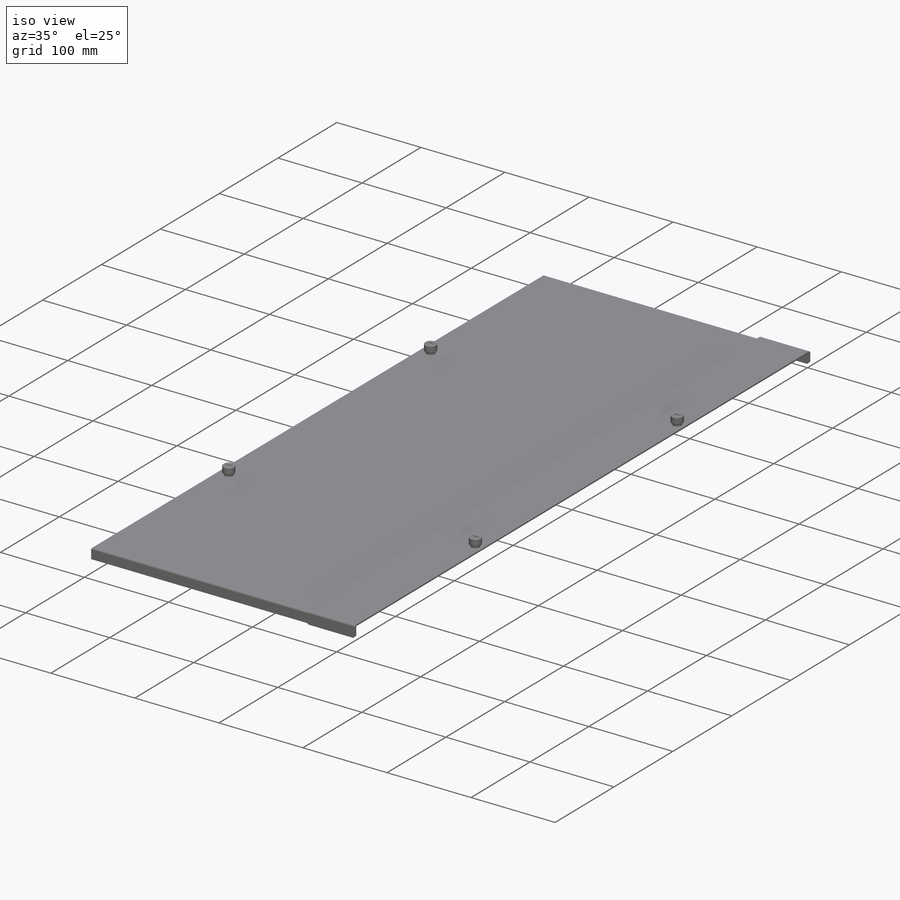
[diagram: iso view]
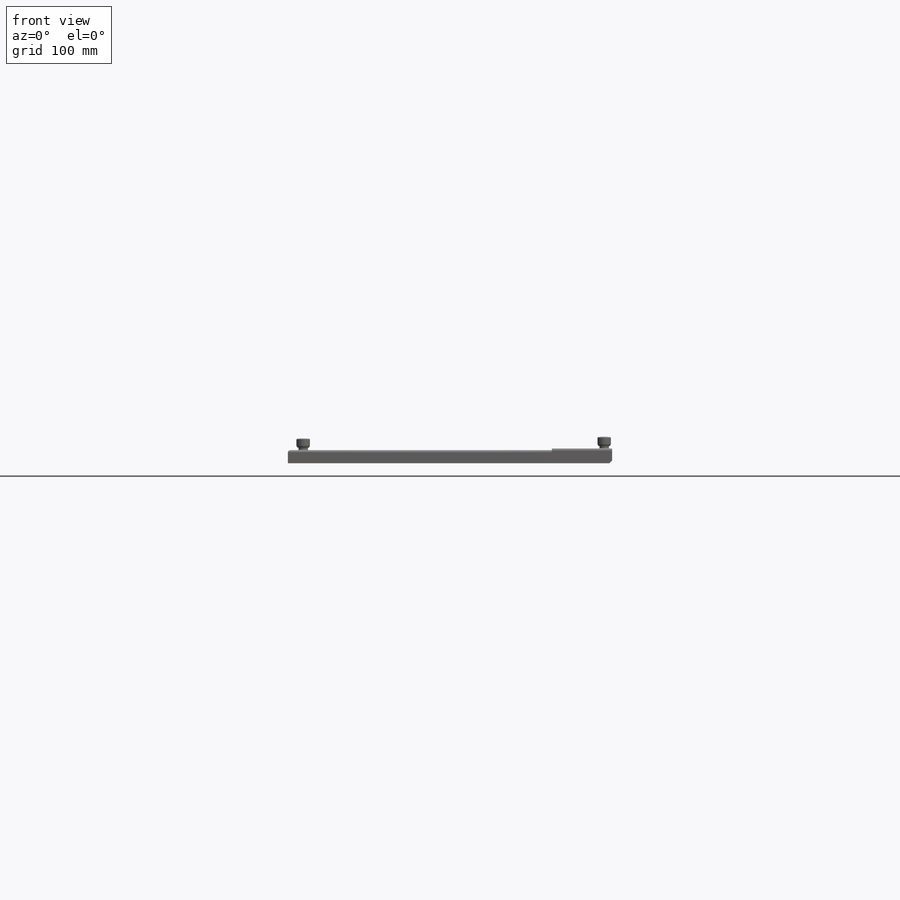
[diagram: front view]
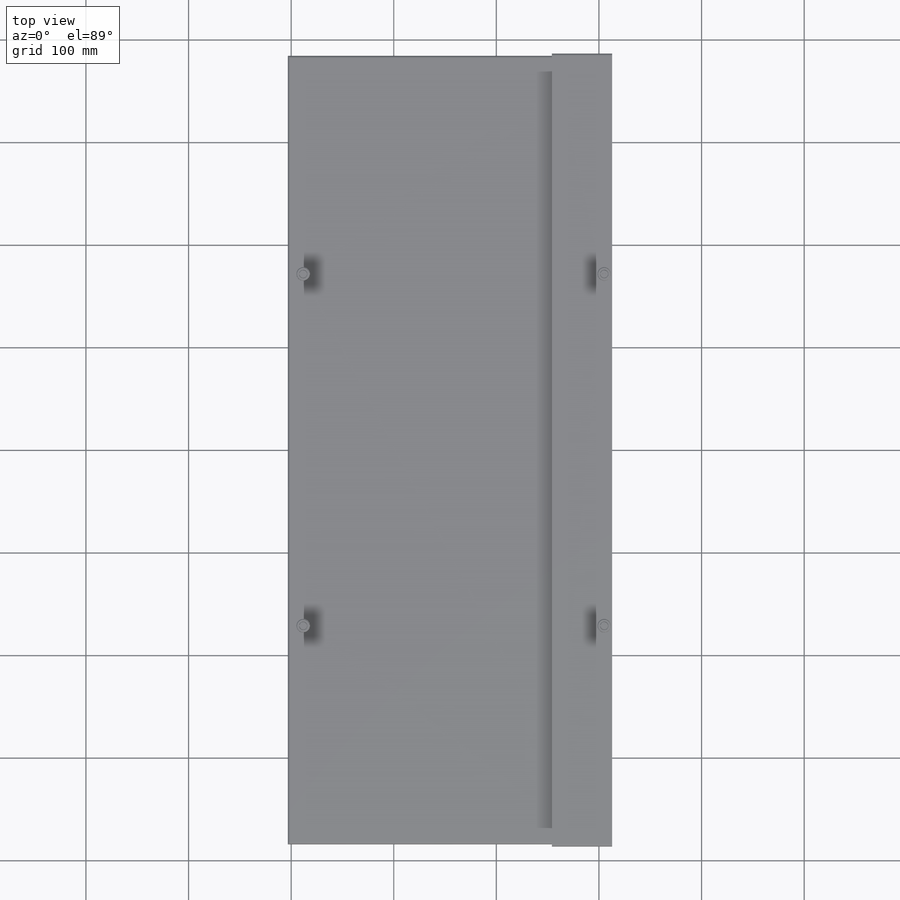
[diagram: top view]
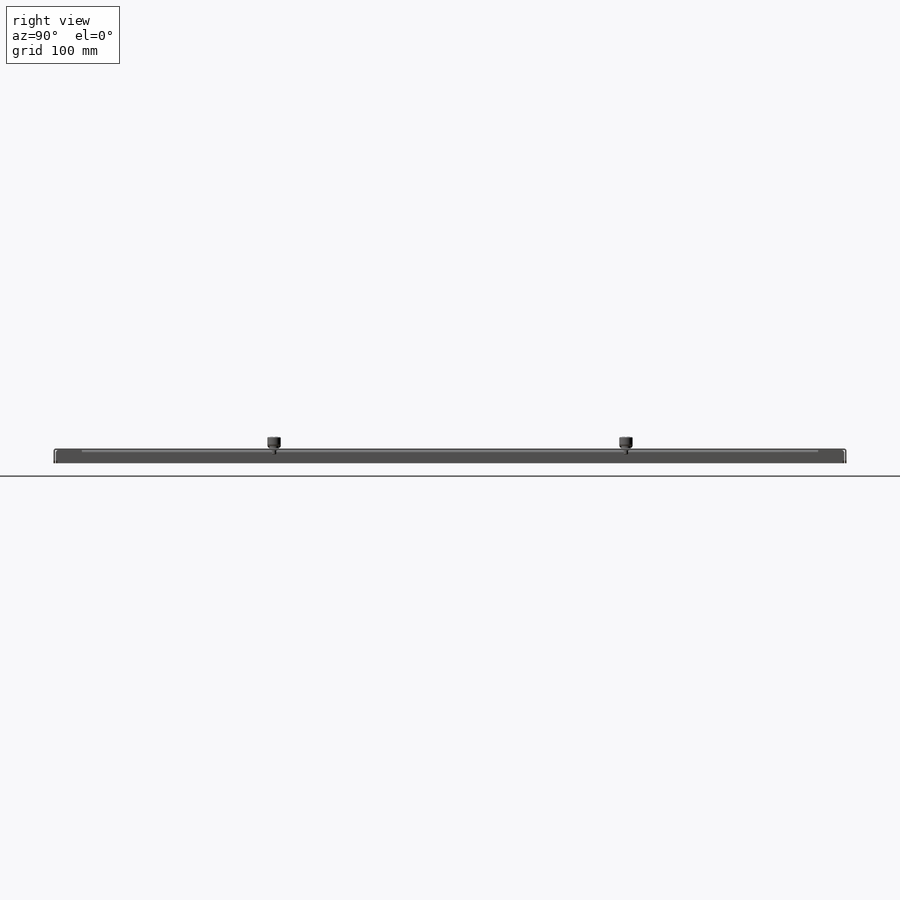
[diagram: right view]
SOLIDWORKS PART (.sldprt)
format: sldprt  version: not decoded by parser v0  size: 842,752 bytes
history: native  units: mm
features: sketch x7, extrude x2, hole x2, move_body x2, chamfer x2, material x1, shell x1, cut_extrude x1, fillet x1 + 5 further entries (+20 scaffold rows collapsed; 10 parser-record rows omitted)
feature tree (54):
  scaffold x20  (default folders/planes/origin — collapsed)
  material  "5052-H32"
  "Origin"  ID=392984584
  sketch  "Sketch1"  dims[c1.D3=~4.916201mm c1.D1=295.402mm c1.D2=1.6002mm c2.D3=6.35mm c2.D4=20.32mm c2.D5=3.175mm c3.D3=6.35mm c3.D6=12.7mm c3.D7=0.4318mm c3.D8=~26.673495mm c3.D9=2.032mm c4.D7=2.032mm c4.D8=20.32mm c4.D9=90.0deg c5.D9=291.338mm c5.D4=294.513mm c5.D8=~294.535397mm c6.D4=294.64mm]
  extrude  "Boss-Extrude1"  Depth=768.35mm
  shell  "Shell1"  Thickness=1.6002mm
  sketch  "Sketch8"  dims[c1.D2=23.876mm c1.D3=23.876mm c1.D4=25.4762mm c2.D2=25.4mm c2.D1=0.0mm]
  cut_extrude  "Cut-Extrude1"  Depth=3.048mm
  fillet  "Fillet1"  Radius=2.286mm
  sketch  "Sketch7"  dims[c1.D2=2.286mm c1.D1=769.62mm c2.D2=782.32mm c2.D1=769.62mm]
  extrude  "Boss-Extrude2"  Depth=38.1mm
  hole  "H (0.266) Diameter Hole1"  Diameter=6.7564mm Depth=1.6002mm
  sketch  "Sketch3"  dims[c1.D1=9.398mm c1.D2=21.082mm c1.D3=~142.550132mm c1.D4=9.398mm c1.D5=~129.853369mm c2.D4=132.842mm c2.D5=~129.853369mm c3.D4=~134.504452mm c3.D5=~129.853369mm c3.D3=~142.550132mm c3.D1=738.632mm c3.D2=696.468mm c4.D3=127.381mm c4.D4=~129.113787mm c4.D5=~245.746829mm c4.D6=249.301mm c5.D5=254.762mm c5.D6=254.762mm c5.D3=266.7mm c5.D2=270.256mm c6.D3=342.9mm c6.D1=293.37mm c6.D2=738.632mm c6.D4=7.747mm c7.D2=738.632mm]
  sketch  "Sketch2"  dims[hole-wizard template sketch: 55 standard entries collapsed; hole parameters kept: c17.Thru Hole Depth=1.6002mm c17.Far C'Sink Dia.=9.1948mm c17.D4=~2.963249mm c17.Far C'Sink Angle=90.0deg]
  "PF11MF-832-0 (Penn Engineering)"
  parser-record x10  (decoder bookkeeping rows leaked as tree rows — omitted from the tree; the rows remain in map.json)
  move_body  "Body-Move/Copy2"
  "Sketch-Pattern3"
  hole  "H (0.266) Diameter Hole3"  Diameter=6.7564mm Depth=1.6002mm
  sketch  "Sketch12"
  sketch  "Sketch11"  dims[hole-wizard template sketch: 55 standard entries collapsed; hole parameters kept: c17.Thru Hole Depth=1.6002mm c17.Far C'Sink Dia.=9.1948mm c17.D4=~2.963249mm c17.Far C'Sink Angle=90.0deg]
  "PF11MF-832-0 (Penn Engineering)1"
  move_body  "Body-Move/Copy4"
  "Sketch-Pattern4"
  chamfer  "Chamfer1"  Distance=2.54mm Angle=45deg
  chamfer  "Chamfer2"  Distance=2.54mm Angle=45deg
decode coverage: 15 of 18 modeling features carry decoded parameters; 5 rows unclassified (native names shown)
note: ~ marks probable driven/reference dimensions
note: suppression state not decoded; provenance and decode notes live in map.json
